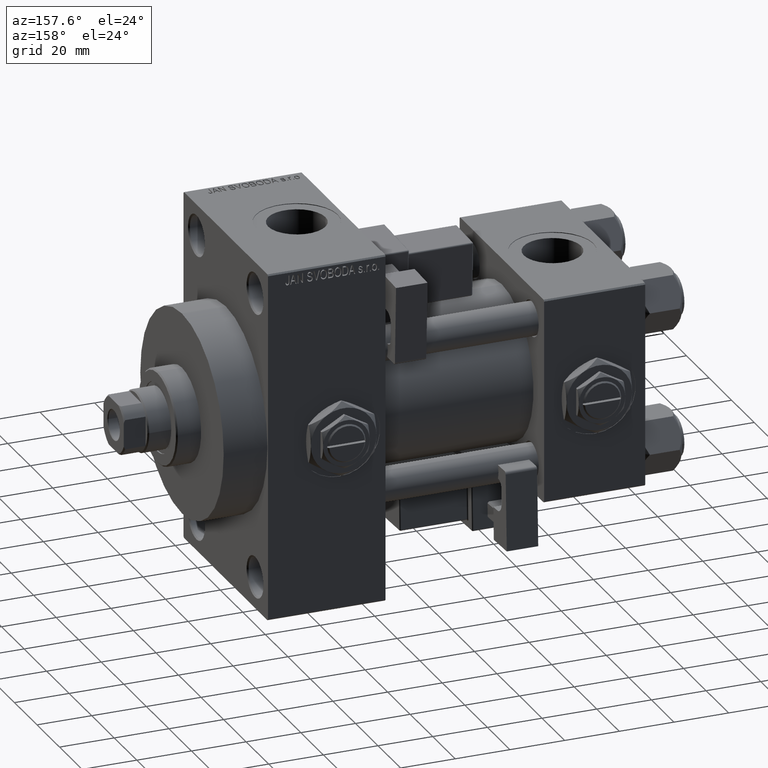
[diagram: clean part render]
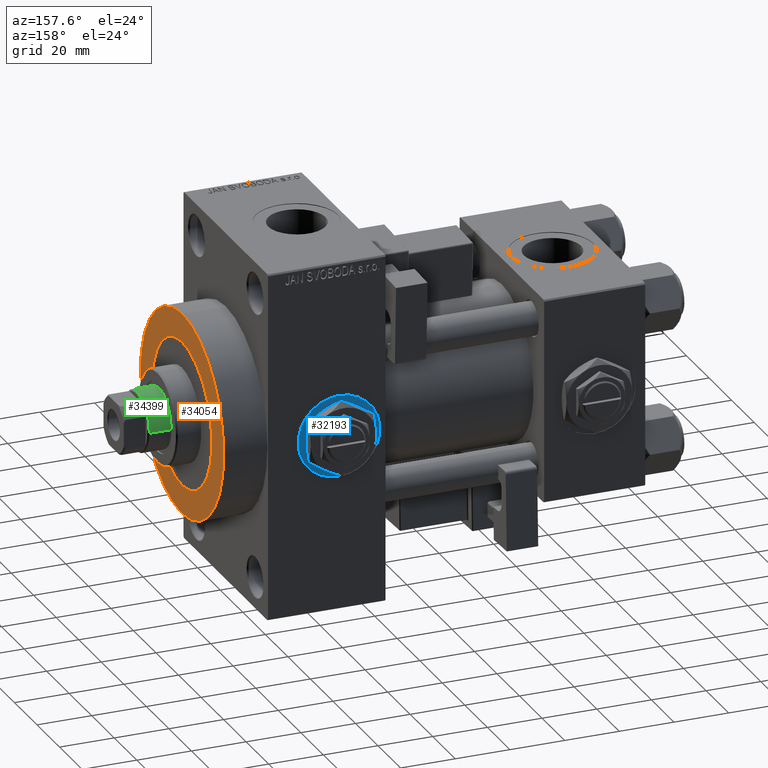
[diagram: same view with three faces highlighted in distinct colors, each labeled with its STEP entity id]
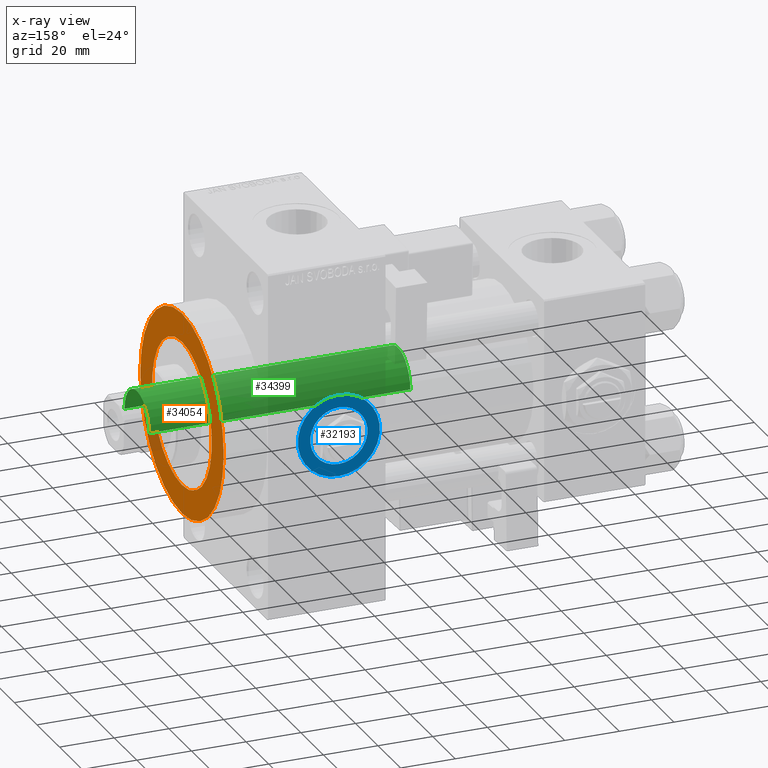
[diagram: x-ray of the same camera — body ghosted, the three highlighted faces saturated]
A machine part, auxiliary view with three faces highlighted in distinct colors.
The next image is the same camera in x-ray (body ghosted, the three faces saturated) — at least one of them is partly hidden behind the body in this view.
Their STEP definitions:

[orange] entity #34054 — the highlighted planar face has unit normal (1, 0, 0).
#2858 = VERTEX_POINT ( 'NONE', #10095 ) ;
#4395 = EDGE_CURVE ( 'NONE', #50098, #32033, #48417, .T. ) ;
#4707 = CARTESIAN_POINT ( 'NONE',  ( 154.0000000000000284, 0.000000000000000000, 0.000000000000000000 ) ) ;
#4787 = DIRECTION ( 'NONE',  ( 1.000000000000000000, 0.000000000000000000, 0.000000000000000000 ) ) ;
#8179 = CARTESIAN_POINT ( 'NONE',  ( 154.0000000000000284, 0.000000000000000000, 0.000000000000000000 ) ) ;
#8353 = CARTESIAN_POINT ( 'NONE',  ( 154.0000000000000284, 3.245314017740486554E-15, 26.50000000000000355 ) ) ;
#8410 = CIRCLE ( 'NONE', #50833, 37.00000000000000000 ) ;
#8538 = AXIS2_PLACEMENT_3D ( 'NONE', #49315, #41761, #25613 ) ;
#8699 = FACE_OUTER_BOUND ( 'NONE', #35803, .T. ) ;
#9388 = CIRCLE ( 'NONE', #38499, 26.50000000000000355 ) ;
#10095 = CARTESIAN_POINT ( 'NONE',  ( 154.0000000000000284, 0.000000000000000000, -26.50000000000000355 ) ) ;
#11505 = DIRECTION ( 'NONE',  ( 0.000000000000000000, 0.000000000000000000, -1.000000000000000000 ) ) ;
#12587 = CARTESIAN_POINT ( 'NONE',  ( 154.0000000000000284, 4.531193156845206793E-15, -37.00000000000000000 ) ) ;
#13907 = AXIS2_PLACEMENT_3D ( 'NONE', #15650, #19560, #11505 ) ;
#14345 = EDGE_CURVE ( 'NONE', #2858, #43841, #29717, .T. ) ;
#15650 = CARTESIAN_POINT ( 'NONE',  ( 154.0000000000000284, 0.000000000000000000, 0.000000000000000000 ) ) ;
#17018 = DIRECTION ( 'NONE',  ( 0.000000000000000000, 0.000000000000000000, -1.000000000000000000 ) ) ;
#19560 = DIRECTION ( 'NONE',  ( 1.000000000000000000, 0.000000000000000000, 0.000000000000000000 ) ) ;
#20916 = DIRECTION ( 'NONE',  ( 1.000000000000000000, 0.000000000000000000, 0.000000000000000000 ) ) ;
#21276 = ORIENTED_EDGE ( 'NONE', *, *, #4395, .T. ) ;
#25613 = DIRECTION ( 'NONE',  ( 0.000000000000000000, 0.000000000000000000, -1.000000000000000000 ) ) ;
#26522 = EDGE_CURVE ( 'NONE', #32033, #50098, #8410, .T. ) ;
#28483 = DIRECTION ( 'NONE',  ( 0.000000000000000000, 0.000000000000000000, -1.000000000000000000 ) ) ;
#29717 = CIRCLE ( 'NONE', #13907, 26.50000000000000355 ) ;
#31002 = AXIS2_PLACEMENT_3D ( 'NONE', #48529, #20916, #28483 ) ;
#32033 = VERTEX_POINT ( 'NONE', #12587 ) ;
#32559 = DIRECTION ( 'NONE',  ( 1.000000000000000000, 0.000000000000000000, 0.000000000000000000 ) ) ;
#33993 = EDGE_CURVE ( 'NONE', #43841, #2858, #9388, .T. ) ;
#34054 = ADVANCED_FACE ( 'NONE', ( #48268, #8699 ), #35784, .T. ) ;
#35784 = PLANE ( 'NONE',  #31002 ) ;
#35803 = EDGE_LOOP ( 'NONE', ( #21276, #36265 ) ) ;
#36265 = ORIENTED_EDGE ( 'NONE', *, *, #26522, .T. ) ;
#37245 = ORIENTED_EDGE ( 'NONE', *, *, #33993, .F. ) ;
#38499 = AXIS2_PLACEMENT_3D ( 'NONE', #8179, #4787, #17018 ) ;
#41761 = DIRECTION ( 'NONE',  ( 1.000000000000000000, 0.000000000000000000, 0.000000000000000000 ) ) ;
#42346 = EDGE_LOOP ( 'NONE', ( #42945, #37245 ) ) ;
#42470 = CARTESIAN_POINT ( 'NONE',  ( 154.0000000000000284, 0.000000000000000000, 37.00000000000000000 ) ) ;
#42945 = ORIENTED_EDGE ( 'NONE', *, *, #14345, .F. ) ;
#43841 = VERTEX_POINT ( 'NONE', #8353 ) ;
#48268 = FACE_BOUND ( 'NONE', #42346, .T. ) ;
#48417 = CIRCLE ( 'NONE', #8538, 37.00000000000000000 ) ;
#48448 = DIRECTION ( 'NONE',  ( 0.000000000000000000, 0.000000000000000000, -1.000000000000000000 ) ) ;
#48529 = CARTESIAN_POINT ( 'NONE',  ( 154.0000000000000284, 0.000000000000000000, 0.000000000000000000 ) ) ;
#49315 = CARTESIAN_POINT ( 'NONE',  ( 154.0000000000000284, 0.000000000000000000, 0.000000000000000000 ) ) ;
#50098 = VERTEX_POINT ( 'NONE', #42470 ) ;
#50833 = AXIS2_PLACEMENT_3D ( 'NONE', #4707, #32559, #48448 ) ;

[blue] entity #32193 — the highlighted planar face has unit normal (0, 1, 0).
#867 = CARTESIAN_POINT ( 'NONE',  ( 112.0000000000000000, 37.29999999999999716, 15.00000000000001066 ) ) ;
#2185 = AXIS2_PLACEMENT_3D ( 'NONE', #36020, #49549, #18280 ) ;
#2536 = VERTEX_POINT ( 'NONE', #867 ) ;
#3178 = DIRECTION ( 'NONE',  ( 0.000000000000000000, -0.000000000000000000, 1.000000000000000000 ) ) ;
#3602 = EDGE_CURVE ( 'NONE', #27548, #48706, #14336, .T. ) ;
#6229 = CIRCLE ( 'NONE', #41180, 10.48000000000000043 ) ;
#6261 = CARTESIAN_POINT ( 'NONE',  ( 112.0000000000000000, 37.30000000000000426, -10.48000000000000220 ) ) ;
#8040 = CIRCLE ( 'NONE', #38824, 15.00000000000001243 ) ;
#9593 = DIRECTION ( 'NONE',  ( 0.000000000000000000, 1.000000000000000000, 0.000000000000000000 ) ) ;
#10504 = CIRCLE ( 'NONE', #2185, 15.00000000000001243 ) ;
#11380 = CARTESIAN_POINT ( 'NONE',  ( 112.0000000000000000, 37.30000000000000426, 10.47999999999999865 ) ) ;
#12613 = ORIENTED_EDGE ( 'NONE', *, *, #44041, .F. ) ;
#14336 = CIRCLE ( 'NONE', #37615, 10.48000000000000043 ) ;
#15894 = CARTESIAN_POINT ( 'NONE',  ( 112.0000000000000000, 37.29999999999999716, -2.032879073410320814E-15 ) ) ;
#16193 = ORIENTED_EDGE ( 'NONE', *, *, #46742, .T. ) ;
#16797 = AXIS2_PLACEMENT_3D ( 'NONE', #15894, #23976, #3178 ) ;
#17628 = ORIENTED_EDGE ( 'NONE', *, *, #47491, .T. ) ;
#18280 = DIRECTION ( 'NONE',  ( 0.000000000000000000, 0.000000000000000000, 1.000000000000000000 ) ) ;
#20168 = VERTEX_POINT ( 'NONE', #50028 ) ;
#22068 = DIRECTION ( 'NONE',  ( 0.000000000000000000, 0.000000000000000000, 1.000000000000000000 ) ) ;
#22950 = PLANE ( 'NONE',  #16797 ) ;
#23976 = DIRECTION ( 'NONE',  ( 0.000000000000000000, 1.000000000000000000, 0.000000000000000000 ) ) ;
#27548 = VERTEX_POINT ( 'NONE', #6261 ) ;
#32193 = ADVANCED_FACE ( 'NONE', ( #35194, #47683 ), #22950, .T. ) ;
#33798 = CARTESIAN_POINT ( 'NONE',  ( 112.0000000000000000, 37.29999999999999716, -2.032879073410320814E-15 ) ) ;
#34123 = EDGE_LOOP ( 'NONE', ( #16193, #17628 ) ) ;
#35194 = FACE_BOUND ( 'NONE', #46140, .T. ) ;
#36020 = CARTESIAN_POINT ( 'NONE',  ( 112.0000000000000000, 37.29999999999999716, -2.032879073410320814E-15 ) ) ;
#37615 = AXIS2_PLACEMENT_3D ( 'NONE', #43790, #40415, #43530 ) ;
#38824 = AXIS2_PLACEMENT_3D ( 'NONE', #33798, #9593, #22068 ) ;
#40415 = DIRECTION ( 'NONE',  ( 0.000000000000000000, 1.000000000000000000, 0.000000000000000000 ) ) ;
#41180 = AXIS2_PLACEMENT_3D ( 'NONE', #49746, #45835, #46860 ) ;
#43530 = DIRECTION ( 'NONE',  ( 0.000000000000000000, 0.000000000000000000, 1.000000000000000000 ) ) ;
#43790 = CARTESIAN_POINT ( 'NONE',  ( 112.0000000000000000, 37.30000000000000426, -2.032879073410320814E-15 ) ) ;
#44041 = EDGE_CURVE ( 'NONE', #48706, #27548, #6229, .T. ) ;
#45835 = DIRECTION ( 'NONE',  ( 0.000000000000000000, 1.000000000000000000, 0.000000000000000000 ) ) ;
#46140 = EDGE_LOOP ( 'NONE', ( #12613, #47960 ) ) ;
#46742 = EDGE_CURVE ( 'NONE', #2536, #20168, #10504, .T. ) ;
#46860 = DIRECTION ( 'NONE',  ( 0.000000000000000000, 0.000000000000000000, 1.000000000000000000 ) ) ;
#47491 = EDGE_CURVE ( 'NONE', #20168, #2536, #8040, .T. ) ;
#47683 = FACE_OUTER_BOUND ( 'NONE', #34123, .T. ) ;
#47960 = ORIENTED_EDGE ( 'NONE', *, *, #3602, .F. ) ;
#48706 = VERTEX_POINT ( 'NONE', #11380 ) ;
#49549 = DIRECTION ( 'NONE',  ( 0.000000000000000000, 1.000000000000000000, 0.000000000000000000 ) ) ;
#49746 = CARTESIAN_POINT ( 'NONE',  ( 112.0000000000000000, 37.30000000000000426, -2.032879073410320814E-15 ) ) ;
#50028 = CARTESIAN_POINT ( 'NONE',  ( 112.0000000000000000, 37.29999999999999716, -15.00000000000001421 ) ) ;

[green] entity #34399 — the highlighted cylindrical surface (edge-blend (fillet) strip) has radius 11 mm, axis along (-1, 0, 0).
#1250 = CARTESIAN_POINT ( 'NONE',  ( 0.000000000000000000, 0.000000000000000000, 134.0000000000000000 ) ) ;
#1785 = CARTESIAN_POINT ( 'NONE',  ( 11.00000000000000000, 1.347111479062088405E-15, 134.0000000000000000 ) ) ;
#1956 = VERTEX_POINT ( 'NONE', #47347 ) ;
#4982 = LINE ( 'NONE', #13319, #28902 ) ;
#5553 = AXIS2_PLACEMENT_3D ( 'NONE', #9128, #45328, #25001 ) ;
#5727 = CARTESIAN_POINT ( 'NONE',  ( 0.000000000000000000, 0.000000000000000000, 38.00000000000000000 ) ) ;
#6527 = CARTESIAN_POINT ( 'NONE',  ( -11.00000000000000000, 0.000000000000000000, 133.5000000000000000 ) ) ;
#6674 = VERTEX_POINT ( 'NONE', #8690 ) ;
#8690 = CARTESIAN_POINT ( 'NONE',  ( 11.00000000000000000, 1.347111479062088405E-15, 133.5000000000000000 ) ) ;
#9053 = CYLINDRICAL_SURFACE ( 'NONE', #50977, 11.00000000000000000 ) ;
#9128 = CARTESIAN_POINT ( 'NONE',  ( 0.000000000000000000, 0.000000000000000000, 133.5000000000000000 ) ) ;
#9571 = FACE_OUTER_BOUND ( 'NONE', #48670, .T. ) ;
#10491 = CARTESIAN_POINT ( 'NONE',  ( -11.00000000000000000, 0.000000000000000000, 38.00000000000000000 ) ) ;
#13319 = CARTESIAN_POINT ( 'NONE',  ( -11.00000000000000000, 0.000000000000000000, 134.0000000000000000 ) ) ;
#13456 = EDGE_CURVE ( 'NONE', #6674, #1956, #20777, .T. ) ;
#13538 = DIRECTION ( 'NONE',  ( 1.000000000000000000, 0.000000000000000000, 0.000000000000000000 ) ) ;
#13882 = CIRCLE ( 'NONE', #5553, 11.00000000000000000 ) ;
#15394 = VECTOR ( 'NONE', #29375, 1000.000000000000000 ) ;
#17625 = DIRECTION ( 'NONE',  ( -0.000000000000000000, -0.000000000000000000, -1.000000000000000000 ) ) ;
#18664 = CIRCLE ( 'NONE', #41952, 11.00000000000000000 ) ;
#19291 = EDGE_CURVE ( 'NONE', #38004, #32144, #4982, .T. ) ;
#20777 = LINE ( 'NONE', #1785, #15394 ) ;
#21986 = ORIENTED_EDGE ( 'NONE', *, *, #37076, .T. ) ;
#24627 = ORIENTED_EDGE ( 'NONE', *, *, #47184, .T. ) ;
#25001 = DIRECTION ( 'NONE',  ( 1.000000000000000000, 0.000000000000000000, 0.000000000000000000 ) ) ;
#25962 = DIRECTION ( 'NONE',  ( -1.000000000000000000, 0.000000000000000000, 0.000000000000000000 ) ) ;
#28902 = VECTOR ( 'NONE', #29189, 1000.000000000000000 ) ;
#29189 = DIRECTION ( 'NONE',  ( -0.000000000000000000, -0.000000000000000000, -1.000000000000000000 ) ) ;
#29375 = DIRECTION ( 'NONE',  ( -0.000000000000000000, -0.000000000000000000, -1.000000000000000000 ) ) ;
#32144 = VERTEX_POINT ( 'NONE', #10491 ) ;
#34399 = ADVANCED_FACE ( 'NONE', ( #9571 ), #9053, .T. ) ;
#37076 = EDGE_CURVE ( 'NONE', #32144, #1956, #18664, .T. ) ;
#38004 = VERTEX_POINT ( 'NONE', #6527 ) ;
#41952 = AXIS2_PLACEMENT_3D ( 'NONE', #5727, #49206, #13538 ) ;
#43997 = ORIENTED_EDGE ( 'NONE', *, *, #19291, .T. ) ;
#45328 = DIRECTION ( 'NONE',  ( 0.000000000000000000, 0.000000000000000000, -1.000000000000000000 ) ) ;
#47184 = EDGE_CURVE ( 'NONE', #6674, #38004, #13882, .T. ) ;
#47347 = CARTESIAN_POINT ( 'NONE',  ( 11.00000000000000000, 1.347111479062088405E-15, 38.00000000000000000 ) ) ;
#48554 = ORIENTED_EDGE ( 'NONE', *, *, #13456, .F. ) ;
#48670 = EDGE_LOOP ( 'NONE', ( #48554, #24627, #43997, #21986 ) ) ;
#49206 = DIRECTION ( 'NONE',  ( 0.000000000000000000, 0.000000000000000000, 1.000000000000000000 ) ) ;
#50977 = AXIS2_PLACEMENT_3D ( 'NONE', #1250, #17625, #25962 ) ;